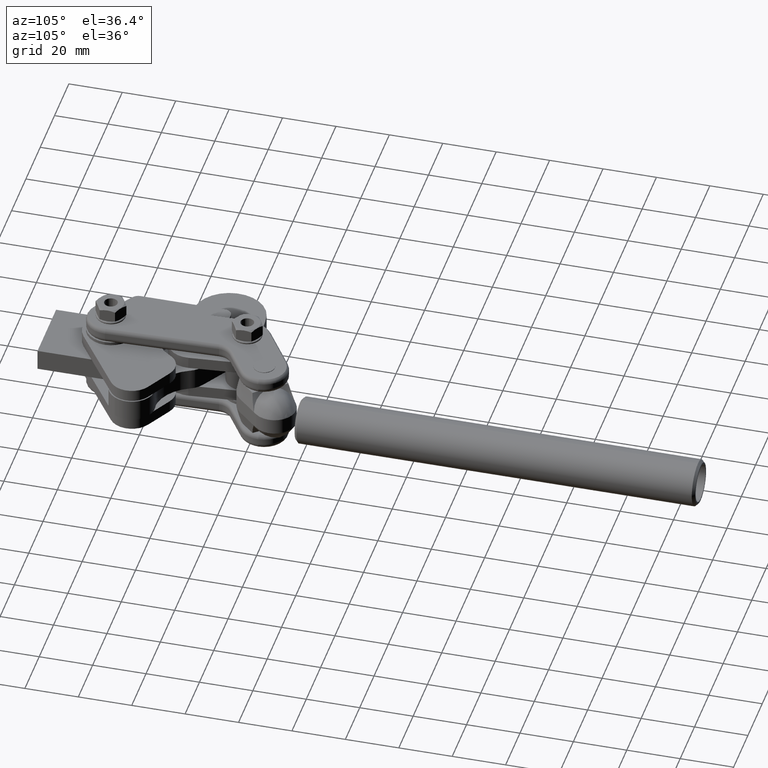
[diagram: clean part render]
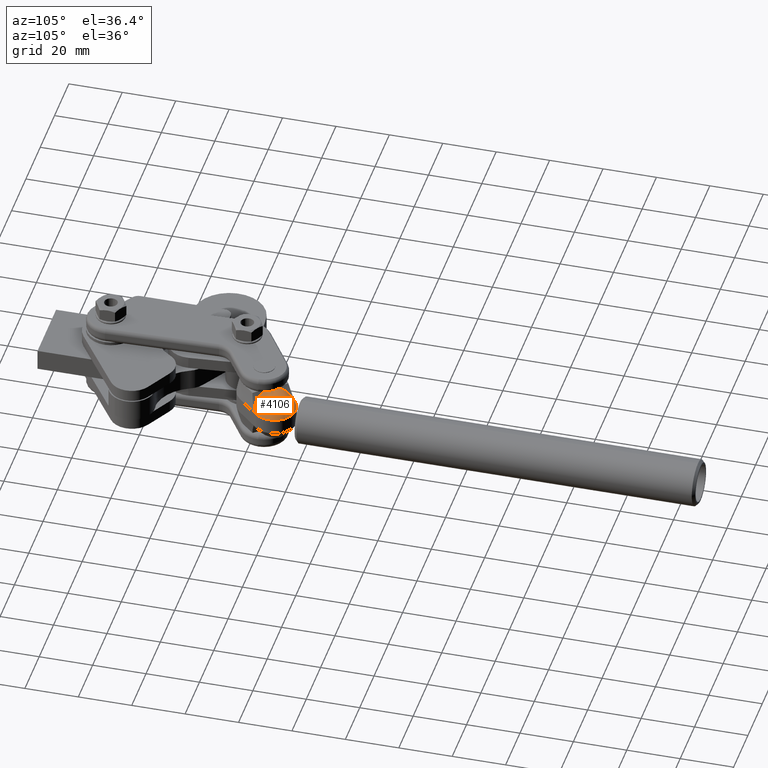
[diagram: same view with one face highlighted and labeled with its STEP entity id]
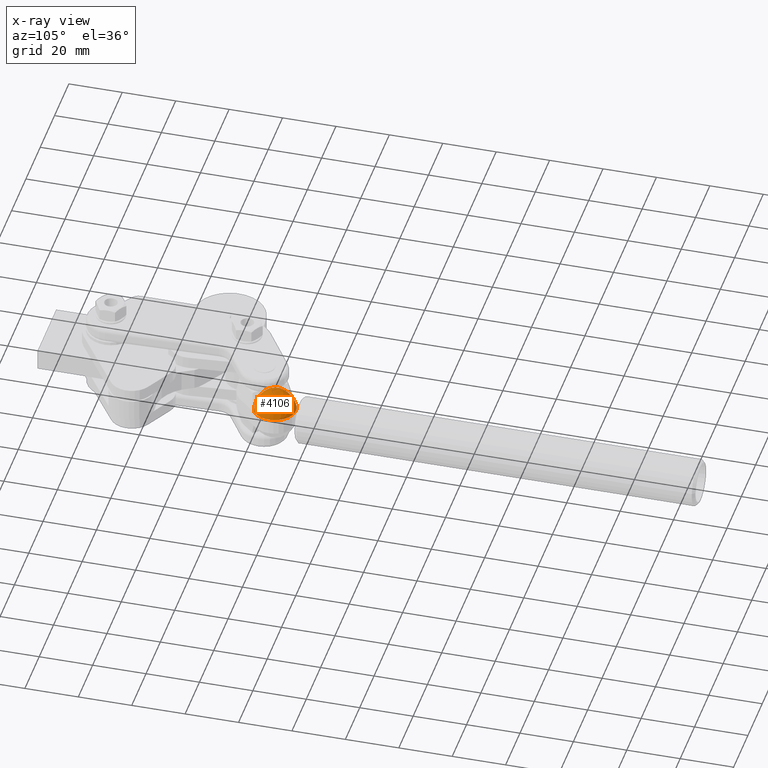
[diagram: x-ray of the same camera — body ghosted, the highlighted face saturated]
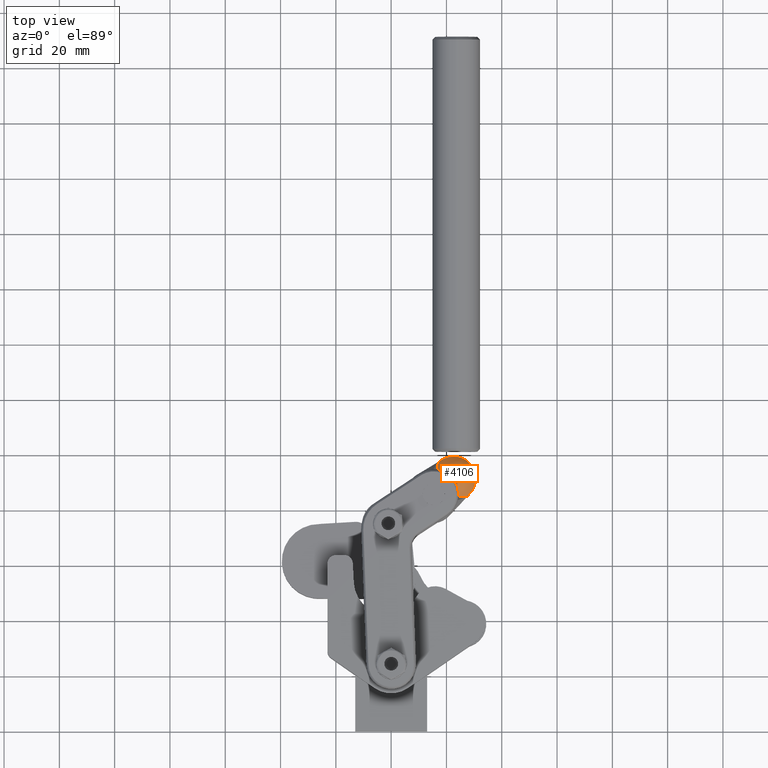
[diagram: same view with one face highlighted and labeled with its STEP entity id]
A machine part, auxiliary view. The second image highlights one B-rep face of the part: STEP entity #4106.
The next image is the same camera in x-ray: the body ghosted, the highlighted face saturated — about 0% of this face is hidden behind the body in this view.
A second angle (top view) of the same face is appended — the face is thin or edge-on in the first view.
In plain terms, the highlighted face is a freeform B-spline surface patch.
Its self-contained STEP definition (entity closure, byte-faithful):
#1 = EDGE_CURVE ( 'NONE', #10053, #4140, #5855, .T. ) ;
#16 = CARTESIAN_POINT ( 'NONE',  ( 28.20521268820891000, 97.16644644876423300, 2.991655464558778300 ) ) ;
#56 = CARTESIAN_POINT ( 'NONE',  ( 28.82232382065510400, 96.40014164269578600, 2.999999999999998200 ) ) ;
#122 = CARTESIAN_POINT ( 'NONE',  ( 21.37688569585138900, 99.27633230243466800, 3.000166234695823800 ) ) ;
#609 = CARTESIAN_POINT ( 'NONE',  ( 11.40401817609150600, 94.07889719735735000, 2.779624734493581600 ) ) ;
#653 = CARTESIAN_POINT ( 'NONE',  ( 11.96919156448442900, 94.41855837122581400, 2.781595761517154900 ) ) ;
#667 = DIRECTION ( 'NONE',  ( 0.6824180438385751800, 0.7309621149167255800, -8.356934724477841600E-017 ) ) ;
#702 = CARTESIAN_POINT ( 'NONE',  ( 13.13068446318447100, 95.11659519705644100, 2.785537815564305100 ) ) ;
#754 = CARTESIAN_POINT ( 'NONE',  ( 14.93228746018345500, 96.20022285493561800, 2.791349938298048000 ) ) ;
#779 = CARTESIAN_POINT ( 'NONE',  ( 18.51649616076339900, 90.50909716582171400, 8.779533946959237100 ) ) ;
#805 = CARTESIAN_POINT ( 'NONE',  ( 16.73366623410056800, 97.28332619117048800, 2.797565894379678400 ) ) ;
#830 = CARTESIAN_POINT ( 'NONE',  ( 16.97839925755656400, 96.92177417139730300, 3.726324554911943500 ) ) ;
#856 = CARTESIAN_POINT ( 'NONE',  ( 17.89560757896437700, 97.98241166028991200, 2.800700281731079300 ) ) ;
#894 = CARTESIAN_POINT ( 'NONE',  ( 19.30330814021231200, 98.82712525930783400, 2.806954033516193100 ) ) ;
#948 = CARTESIAN_POINT ( 'NONE',  ( 21.13625158649277600, 99.50214661625538800, 2.818638069082038300 ) ) ;
#977 = CARTESIAN_POINT ( 'NONE',  ( 26.23936687135529100, 98.50963556223771900, 3.000210450775076400 ) ) ;
#995 = CARTESIAN_POINT ( 'NONE',  ( 24.01159551935856100, 99.48253643869074400, 2.862030150454218300 ) ) ;
#1016 = CARTESIAN_POINT ( 'NONE',  ( 24.93391735589719000, 84.87736800917046800, 5.838298964709409200 ) ) ;
#1020 = CARTESIAN_POINT ( 'NONE',  ( 29.79892638093599500, 87.86225761801152600, 3.000050376854956500 ) ) ;
#1040 = CARTESIAN_POINT ( 'NONE',  ( 26.71360350902793000, 98.46628140325164200, 2.924899181029011300 ) ) ;
#1065 = CARTESIAN_POINT ( 'NONE',  ( 19.95207078626720000, 88.60338799026052900, 8.999999999998166800 ) ) ;
#1070 = CARTESIAN_POINT ( 'NONE',  ( 30.26743939501764300, 93.67479723171118200, 3.000201222297612900 ) ) ;
#1083 = CARTESIAN_POINT ( 'NONE',  ( 28.20404786726497900, 97.17546305892595600, 2.974966393676338400 ) ) ;
#1135 = CARTESIAN_POINT ( 'NONE',  ( 28.82232382065510400, 96.40014164269578600, 2.999999999999998200 ) ) ;
#1212 = CARTESIAN_POINT ( 'NONE',  ( 20.21684121913854800, 99.01774497147047800, 2.999888273103255000 ) ) ;
#1600 = B_SPLINE_CURVE_WITH_KNOTS ( 'NONE', 3,
 ( #3057, #10474, #6255, #13643, #7320, #1016, #8404, #2056, #9467, #3100, #10523, #4160, #11567, #5219, #12638, #6305, #10562, #7367, #1065, #8450 ),
 .UNSPECIFIED., .F., .F.,
 ( 4, 2, 2, 2, 2, 2, 2, 2, 2, 4 ),
 ( 4.091337135425214900E-018, 0.002859219860830585300, 0.003574024826038228100, 0.004288829791245871900, 0.005718439721661155000, 0.006433244686868793000, 0.007148049652076429400, 0.008577659582491691700, 0.01000726951290695200, 0.01143687944332221300 ),
 .UNSPECIFIED. ) ;
#1677 = CARTESIAN_POINT ( 'NONE',  ( 23.35026902321153100, 80.35447226290202100, 2.855838786479969000 ) ) ;
#1721 = CARTESIAN_POINT ( 'NONE',  ( 24.27388990139359800, 81.34367796597823000, 2.858440802352670800 ) ) ;
#1731 = B_SPLINE_SURFACE_WITH_KNOTS ( 'NONE', 3, 3, ( 
 ( #7915, #13215, #9033, #2674, #10087, #3709, #11136, #4778, #12192, #5853, #13261, #6925, #609 ),
 ( #8009, #1677, #9085, #2720, #10135, #3766, #11191, #4823, #12238, #5908, #13311, #6976, #653 ),
 ( #8066, #1721, #9128, #2769, #10183, #3811, #11234, #4868, #12281, #5952, #13360, #7014, #702 ),
 ( #8113, #1768, #9174, #2815, #10222, #3855, #11277, #4919, #12331, #5997, #13396, #7068, #754 ),
 ( #8158, #1816, #9227, #2851, #10270, #3906, #11315, #4960, #12383, #6044, #13444, #7115, #805 ),
 ( #8196, #1858, #9273, #2900, #10314, #3952, #11365, #5008, #12432, #6088, #13493, #7160, #856 ),
 ( #8241, #1895, #9315, #2944, #10361, #3996, #11408, #5059, #12474, #6137, #13533, #7204, #894 ),
 ( #8283, #1942, #9352, #2989, #10404, #4038, #11448, #5105, #12527, #6177, #13571, #7253, #948 ),
 ( #8330, #1986, #9401, #3027, #10451, #4087, #11496, #5149, #12568, #6227, #13615, #7297, #995 ),
 ( #8378, #2031, #9445, #3079, #10499, #4135, #11547, #5194, #12612, #6276, #13667, #7341, #1040 ),
 ( #8425, #2078, #9485, #3116, #10544, #4183, #11588, #5236, #12659, #6325, #16, #7389, #1083 ),
 ( #8473, #2126, #9522, #3161, #10595, #4226, #11633, #5288, #12713, #6368, #56, #7437, #1135 ) ),
 .UNSPECIFIED., .F., .F., .F.,
 ( 4, 1, 1, 1, 2, 1, 1, 1, 4 ),
 ( 4, 3, 1, 1, 1, 3, 4 ),
 ( 0.0000000000000000000, 0.1003186396594180600, 0.2006372793188361300, 0.3009559189782541900, 0.4012745586376722500, 0.5509559189782542400, 0.7006372793188360100, 0.8503186396594180100, 1.000000000000000000 ),
 ( -0.01000000000000000000, 0.0000000000000000000, 0.3333333333333333700, 0.5000000000000048800, 0.6666666666666667400, 1.000000000000000000, 1.010100000000000000 ),
 .UNSPECIFIED. ) ;
#1768 = CARTESIAN_POINT ( 'NONE',  ( 25.70582087705456000, 82.87654516421190500, 2.862277186995414000 ) ) ;
#1816 = CARTESIAN_POINT ( 'NONE',  ( 27.13738251556396700, 84.40933976210932600, 2.866380128303415400 ) ) ;
#1832 = CARTESIAN_POINT ( 'NONE',  ( 17.92246524172528800, 91.48203323237307000, 8.403796443902907100 ) ) ;
#1858 = CARTESIAN_POINT ( 'NONE',  ( 28.06174206804914200, 85.39869066585808400, 2.868449030845597200 ) ) ;
#1895 = CARTESIAN_POINT ( 'NONE',  ( 29.18047678575045400, 86.59793412605172600, 2.872576919812668300 ) ) ;
#1942 = CARTESIAN_POINT ( 'NONE',  ( 30.22370046471557700, 88.24855999108562800, 2.880289154509598300 ) ) ;
#1986 = CARTESIAN_POINT ( 'NONE',  ( 30.81081383314369800, 91.06146035804198400, 2.908930792379026200 ) ) ;
#2014 = CARTESIAN_POINT ( 'NONE',  ( 25.14243040992724700, 98.95755979436633300, 2.999878074554629400 ) ) ;
#2031 = CARTESIAN_POINT ( 'NONE',  ( 30.39033685703529400, 93.91163743439196300, 2.950428502329377700 ) ) ;
#2056 = CARTESIAN_POINT ( 'NONE',  ( 24.26644967304894600, 85.09672089442179300, 6.499666582459826500 ) ) ;
#2060 = CARTESIAN_POINT ( 'NONE',  ( 30.17702617230747800, 88.74529921046922700, 3.000181391786845200 ) ) ;
#2078 = CARTESIAN_POINT ( 'NONE',  ( 29.44734329930710000, 95.63535608389248900, 2.983476167443126900 ) ) ;
#2107 = CARTESIAN_POINT ( 'NONE',  ( 29.85065579826166600, 94.78909118855993700, 2.999852583906435400 ) ) ;
#2126 = CARTESIAN_POINT ( 'NONE',  ( 28.82232382065510400, 96.40014164269578600, 2.999999999999998200 ) ) ;
#2197 = CARTESIAN_POINT ( 'NONE',  ( 28.45140838779680000, 85.90801869431732000, 2.999999999999998200 ) ) ;
#2203 = CARTESIAN_POINT ( 'NONE',  ( 17.26201076002576000, 97.49081262841701800, 2.999999999999999600 ) ) ;
#2241 = CARTESIAN_POINT ( 'NONE',  ( 18.89380220077244800, 98.47129184362793800, 2.999999999583411000 ) ) ;
#2674 = CARTESIAN_POINT ( 'NONE',  ( 22.86206775600922500, 79.92107815824925900, 2.999999999999998700 ) ) ;
#2720 = CARTESIAN_POINT ( 'NONE',  ( 23.31029669610172000, 80.40119203708800900, 2.999999999999999100 ) ) ;
#2769 = CARTESIAN_POINT ( 'NONE',  ( 24.23155099067679400, 81.38798011166889500, 2.999999999999996400 ) ) ;
#2815 = CARTESIAN_POINT ( 'NONE',  ( 25.65673807190301000, 82.91454842628327500, 2.999999999999999100 ) ) ;
#2851 = CARTESIAN_POINT ( 'NONE',  ( 27.08192515312923000, 84.44111674089768400, 2.999999999999998700 ) ) ;
#2874 = CARTESIAN_POINT ( 'NONE',  ( 17.61102022514365800, 92.06481056372024300, 8.110252212997432200 ) ) ;
#2900 = CARTESIAN_POINT ( 'NONE',  ( 28.00317944770430900, 85.42790481547855600, 2.999999999999999100 ) ) ;
#2944 = CARTESIAN_POINT ( 'NONE',  ( 29.12019254550204300, 86.62437707134560600, 2.999999999999997800 ) ) ;
#2989 = CARTESIAN_POINT ( 'NONE',  ( 30.16519175888748800, 88.27243880928023100, 2.999999999999995600 ) ) ;
#3027 = CARTESIAN_POINT ( 'NONE',  ( 30.76562702070204800, 91.07882463817478000, 3.000000000000006700 ) ) ;
#3043 = VECTOR ( 'NONE', #3745, 1000.000000000000000 ) ;
#3057 = CARTESIAN_POINT ( 'NONE',  ( 27.47901625048580200, 84.86645506680957900, 2.999999999999998200 ) ) ;
#3062 = CARTESIAN_POINT ( 'NONE',  ( 24.45559602390956000, 99.15372252055648500, 3.000017330977174700 ) ) ;
#3079 = CARTESIAN_POINT ( 'NONE',  ( 30.36486458700199300, 93.92060460783899600, 2.999999999999992000 ) ) ;
#3100 = CARTESIAN_POINT ( 'NONE',  ( 23.42791143844331400, 85.52097267316939600, 7.241292367118057300 ) ) ;
#3104 = CARTESIAN_POINT ( 'NONE',  ( 30.47064438887455800, 89.89503791962246700, 2.999887866087444200 ) ) ;
#3116 = CARTESIAN_POINT ( 'NONE',  ( 29.43885254262933100, 95.63834514170818600, 2.999999999999998200 ) ) ;
#3150 = CARTESIAN_POINT ( 'NONE',  ( 29.38429096353284800, 95.61960242889952600, 2.999834335074615100 ) ) ;
#3161 = CARTESIAN_POINT ( 'NONE',  ( 28.82232382065510400, 96.40014164269578600, 2.999999999999998200 ) ) ;
#3210 = VECTOR ( 'NONE', #667, 1000.000000000000100 ) ;
#3277 = VERTEX_POINT ( 'NONE', #5131 ) ;
#3280 = EDGE_CURVE ( 'NONE', #4507, #10053, #4810, .T. ) ;
#3709 = CARTESIAN_POINT ( 'NONE',  ( 20.41402260009074300, 82.94593680241196400, 8.212185178803183700 ) ) ;
#3745 = DIRECTION ( 'NONE',  ( -0.8571673007021116700, -0.5150380749100552700, 1.049692522728615100E-016 ) ) ;
#3766 = CARTESIAN_POINT ( 'NONE',  ( 20.83705191932738600, 83.36907415202402700, 8.201343446000251400 ) ) ;
#3795 = CARTESIAN_POINT ( 'NONE',  ( 18.48340686918254500, 98.22470145064282600, 2.999999999999999100 ) ) ;
#3811 = CARTESIAN_POINT ( 'NONE',  ( 21.65098987303822400, 84.19368153174085000, 8.179659980394392300 ) ) ;
#3855 = CARTESIAN_POINT ( 'NONE',  ( 22.81531680756085100, 85.39090273356671900, 8.147690108371541800 ) ) ;
#3906 = CARTESIAN_POINT ( 'NONE',  ( 23.98364378133514700, 86.58758941087114600, 8.113498930804867700 ) ) ;
#3926 = CARTESIAN_POINT ( 'NONE',  ( 17.25790566462965400, 92.82669986295060500, 7.653385413097586500 ) ) ;
#3952 = CARTESIAN_POINT ( 'NONE',  ( 24.78958165654264400, 87.41326583963082400, 8.096258076286691400 ) ) ;
#3996 = CARTESIAN_POINT ( 'NONE',  ( 25.85708691805165700, 88.46597311704593400, 8.061859001561083800 ) ) ;
#4038 = CARTESIAN_POINT ( 'NONE',  ( 27.03948037617182000, 89.91116262967963700, 7.823966926785465700 ) ) ;
#4087 = CARTESIAN_POINT ( 'NONE',  ( 28.36845648987729300, 92.27550700756275100, 6.741578457639021400 ) ) ;
#4106 = ADVANCED_FACE ( 'NONE', ( #6277 ), #1731, .T. ) ;
#4119 = CARTESIAN_POINT ( 'NONE',  ( 23.51360502022045300, 99.32982578246199500, 3.000081100900274600 ) ) ;
#4135 = CARTESIAN_POINT ( 'NONE',  ( 29.03267901162989500, 94.54803867398010200, 5.051377564143240100 ) ) ;
#4140 = VERTEX_POINT ( 'NONE', #2203 ) ;
#4160 = CARTESIAN_POINT ( 'NONE',  ( 22.91820890188294500, 85.84127504175157200, 7.644663462025588000 ) ) ;
#4165 = CARTESIAN_POINT ( 'NONE',  ( 30.57078420082694200, 90.60389165463855900, 3.000013067664120100 ) ) ;
#4183 = CARTESIAN_POINT ( 'NONE',  ( 28.97567834595690100, 95.83806060596758400, 3.689429836542097000 ) ) ;
#4209 = CARTESIAN_POINT ( 'NONE',  ( 29.11432995800580100, 96.01777291328063800, 2.999937666179784300 ) ) ;
#4226 = CARTESIAN_POINT ( 'NONE',  ( 28.82232382065510400, 96.40014164269578600, 2.999999999999999600 ) ) ;
#4246 = CARTESIAN_POINT ( 'NONE',  ( 30.44392295912098200, 92.97625247677220300, 2.999970535773570600 ) ) ;
#4507 = VERTEX_POINT ( 'NONE', #10910 ) ;
#4778 = CARTESIAN_POINT ( 'NONE',  ( 13.91082872049905300, 90.98142674171764100, 8.212185178803187200 ) ) ;
#4810 = B_SPLINE_CURVE_WITH_KNOTS ( 'NONE', 3,
 ( #13599, #6209, #7280, #977, #8357, #2014, #9427, #3062, #10480, #4119, #11527, #5364, #12782, #6453, #122, #7510, #1212, #8591, #2241, #9642 ),
 .UNSPECIFIED., .F., .F.,
 ( 4, 2, 2, 2, 2, 2, 2, 2, 2, 4 ),
 ( -1.116518309797334000E-007, 0.002873236340466861700, 0.004309910336615777900, 0.005028247334690236000, 0.005746584332764693300, 0.007183258328913616500, 0.007901595326988071100, 0.008619932325062529300, 0.01005660632121144200, 0.01149328031736035500 ),
 .UNSPECIFIED. ) ;
#4823 = CARTESIAN_POINT ( 'NONE',  ( 14.41285917664789200, 91.30694854232326900, 8.201343446000253200 ) ) ;
#4868 = CARTESIAN_POINT ( 'NONE',  ( 15.38903254253252600, 91.93109426482075700, 8.179659980394395900 ) ) ;
#4870 = CARTESIAN_POINT ( 'NONE',  ( 18.48340686918255200, 98.22470145064282600, 2.999999999999999100 ) ) ;
#4919 = CARTESIAN_POINT ( 'NONE',  ( 16.80267937761600900, 92.82025029286906200, 8.147690108371540100 ) ) ;
#4960 = CARTESIAN_POINT ( 'NONE',  ( 18.21663733332945900, 93.71342990569125700, 8.113498930804869500 ) ) ;
#4978 = CARTESIAN_POINT ( 'NONE',  ( 16.89313299429952100, 93.94329036435551900, 6.809840443008569700 ) ) ;
#5008 = CARTESIAN_POINT ( 'NONE',  ( 19.19218845795418500, 94.32952845864099300, 8.096258076286691400 ) ) ;
#5059 = CARTESIAN_POINT ( 'NONE',  ( 20.44431189884271700, 95.15411743749626800, 8.061859001561087400 ) ) ;
#5105 = CARTESIAN_POINT ( 'NONE',  ( 22.10424509384305100, 96.00924830781245600, 7.823966926785463900 ) ) ;
#5131 = CARTESIAN_POINT ( 'NONE',  ( 19.64987060118989600, 88.97679321111030500, 8.999999999999998200 ) ) ;
#5149 = CARTESIAN_POINT ( 'NONE',  ( 24.69369611635624700, 96.81612205879992000, 6.741578457639020500 ) ) ;
#5194 = CARTESIAN_POINT ( 'NONE',  ( 27.05476847716616000, 96.99198859993985900, 5.051377564143239200 ) ) ;
#5219 = CARTESIAN_POINT ( 'NONE',  ( 22.24066677235788000, 86.33461043498989800, 8.120625009564488300 ) ) ;
#5222 = CARTESIAN_POINT ( 'NONE',  ( 30.61564532236860000, 91.56211458644830300, 3.000088669804205700 ) ) ;
#5236 = CARTESIAN_POINT ( 'NONE',  ( 28.30456306822032200, 96.66730546045209800, 3.689429836542097000 ) ) ;
#5270 = CARTESIAN_POINT ( 'NONE',  ( 28.89697398849867900, 96.30790224713396700, 2.999999994786319800 ) ) ;
#5288 = CARTESIAN_POINT ( 'NONE',  ( 28.82232382065510400, 96.40014164269578600, 2.999999999999999600 ) ) ;
#5364 = CARTESIAN_POINT ( 'NONE',  ( 22.32933667908664100, 99.36617379634073200, 2.999919705343645900 ) ) ;
#5705 = EDGE_CURVE ( 'NONE', #6370, #7964, #11664, .T. ) ;
#5853 = CARTESIAN_POINT ( 'NONE',  ( 11.46278356458056700, 94.00628538588034600, 3.000000000000000400 ) ) ;
#5855 = LINE ( 'NONE', #3795, #3043 ) ;
#5908 = CARTESIAN_POINT ( 'NONE',  ( 12.02579211065373600, 94.34457504939166500, 3.000000000000000900 ) ) ;
#5952 = CARTESIAN_POINT ( 'NONE',  ( 13.18295532471427300, 95.03986885450802900, 3.000000000000004000 ) ) ;
#5997 = CARTESIAN_POINT ( 'NONE',  ( 14.97309521688155000, 96.11549341826156500, 2.999999999999995600 ) ) ;
#6044 = CARTESIAN_POINT ( 'NONE',  ( 16.76323510904884300, 97.19111798201517200, 3.000000000000002700 ) ) ;
#6064 = CARTESIAN_POINT ( 'NONE',  ( 16.73402183632142500, 94.99590534876314500, 5.848053630125485300 ) ) ;
#6088 = CARTESIAN_POINT ( 'NONE',  ( 17.92039832310938200, 97.88641178713149300, 2.999999999999999600 ) ) ;
#6137 = CARTESIAN_POINT ( 'NONE',  ( 19.32344900521395900, 98.72944968850788400, 2.999999999999998700 ) ) ;
#6177 = CARTESIAN_POINT ( 'NONE',  ( 21.15315393118928700, 99.40791172273085900, 2.999999999999992900 ) ) ;
#6209 = CARTESIAN_POINT ( 'NONE',  ( 28.21978530900317100, 97.14465153092429300, 2.999999957804995200 ) ) ;
#6213 = ORIENTED_EDGE ( 'NONE', *, *, #5705, .T. ) ;
#6227 = CARTESIAN_POINT ( 'NONE',  ( 24.02305273483414900, 99.41009829266933200, 3.000000000000005800 ) ) ;
#6255 = CARTESIAN_POINT ( 'NONE',  ( 26.23855455017359300, 84.66013652772397800, 4.448502825253773300 ) ) ;
#6261 = CARTESIAN_POINT ( 'NONE',  ( 29.07203218776371000, 86.63596344752203000, 2.999855382662377100 ) ) ;
#6276 = CARTESIAN_POINT ( 'NONE',  ( 26.71884520327562400, 98.42570665752391800, 2.999999999999992500 ) ) ;
#6277 = FACE_OUTER_BOUND ( 'NONE', #9226, .T. ) ;
#6305 = CARTESIAN_POINT ( 'NONE',  ( 21.24286147917647900, 87.21936442641911900, 8.650474606833631300 ) ) ;
#6308 = CARTESIAN_POINT ( 'NONE',  ( 30.48830269041104700, 92.74202246057076600, 2.999907414358070800 ) ) ;
#6325 = CARTESIAN_POINT ( 'NONE',  ( 28.20579509868087300, 97.16193814368337200, 2.999999999999998200 ) ) ;
#6368 = CARTESIAN_POINT ( 'NONE',  ( 28.82232382065510400, 96.40014164269578600, 2.999999999999998200 ) ) ;
#6370 = VERTEX_POINT ( 'NONE', #7012 ) ;
#6453 = CARTESIAN_POINT ( 'NONE',  ( 21.61573725287670900, 99.30972138761328000, 3.000101662676117400 ) ) ;
#6925 = CARTESIAN_POINT ( 'NONE',  ( 11.42360663892119300, 94.05469326019834900, 2.853083156329054400 ) ) ;
#6976 = CARTESIAN_POINT ( 'NONE',  ( 11.98805841320752900, 94.39389726394776400, 2.854397174344770200 ) ) ;
#7012 = CARTESIAN_POINT ( 'NONE',  ( 27.47901625048580200, 84.86645506680957900, 2.999999999999998200 ) ) ;
#7014 = CARTESIAN_POINT ( 'NONE',  ( 13.14810808369440500, 95.09101974954030800, 2.857025210376204600 ) ) ;
#7068 = CARTESIAN_POINT ( 'NONE',  ( 14.94589004574948800, 96.17197970937760900, 2.860899958865363900 ) ) ;
#7086 = CARTESIAN_POINT ( 'NONE',  ( 19.05612321015629000, 89.73735708797265400, 8.953586419710736900 ) ) ;
#7115 = CARTESIAN_POINT ( 'NONE',  ( 16.74352252574999200, 97.25259012145204500, 2.865043929586453200 ) ) ;
#7140 = CARTESIAN_POINT ( 'NONE',  ( 16.80094464267071800, 96.32057164513551600, 4.448962514880575400 ) ) ;
#7160 = CARTESIAN_POINT ( 'NONE',  ( 17.90387116034604300, 97.95041170257043500, 2.867133521154052700 ) ) ;
#7169 = EDGE_CURVE ( 'NONE', #7964, #4507, #11121, .T. ) ;
#7204 = CARTESIAN_POINT ( 'NONE',  ( 19.31002176187952900, 98.79456673570786100, 2.871302689010795100 ) ) ;
#7253 = CARTESIAN_POINT ( 'NONE',  ( 21.14188570139161500, 99.47073498508055400, 2.879092046054689800 ) ) ;
#7280 = CARTESIAN_POINT ( 'NONE',  ( 27.48032495887695200, 97.78131880882018800, 3.000139727912581200 ) ) ;
#7297 = CARTESIAN_POINT ( 'NONE',  ( 24.01541459118375600, 99.45839039001694500, 2.908020100302814100 ) ) ;
#7320 = CARTESIAN_POINT ( 'NONE',  ( 25.26506263935796100, 84.79879299932538600, 5.495387032292327900 ) ) ;
#7324 = CARTESIAN_POINT ( 'NONE',  ( 29.57734256018581200, 87.43985097149685300, 2.999923797603375200 ) ) ;
#7341 = CARTESIAN_POINT ( 'NONE',  ( 26.71535074044383200, 98.45275648800907200, 2.949932787352671500 ) ) ;
#7367 = CARTESIAN_POINT ( 'NONE',  ( 20.26419729074530500, 88.24393819721980500, 8.954762274973811400 ) ) ;
#7371 = CARTESIAN_POINT ( 'NONE',  ( 30.33354810338168100, 93.44271049046713500, 3.000117884381394700 ) ) ;
#7389 = CARTESIAN_POINT ( 'NONE',  ( 28.20463027773694600, 97.17095475384508100, 2.983310929117558400 ) ) ;
#7437 = CARTESIAN_POINT ( 'NONE',  ( 28.82232382065510400, 96.40014164269578600, 2.999999999999998200 ) ) ;
#7510 = CARTESIAN_POINT ( 'NONE',  ( 20.67333799308549700, 99.14561754134351200, 3.000117247292436200 ) ) ;
#7915 = CARTESIAN_POINT ( 'NONE',  ( 22.92025130896869500, 79.84918527559877100, 2.781806667815426100 ) ) ;
#7964 = VERTEX_POINT ( 'NONE', #2197 ) ;
#8009 = CARTESIAN_POINT ( 'NONE',  ( 23.37025518676643500, 80.33111237580901300, 2.783758179719954200 ) ) ;
#8027 = CARTESIAN_POINT ( 'NONE',  ( 22.86206775600922500, 79.92107815824925900, 2.999999999999998700 ) ) ;
#8066 = CARTESIAN_POINT ( 'NONE',  ( 24.29505935675200200, 81.32152689313291200, 2.787661203529007800 ) ) ;
#8113 = CARTESIAN_POINT ( 'NONE',  ( 25.73036227963033100, 82.85754353317621200, 2.793415780493121200 ) ) ;
#8158 = CARTESIAN_POINT ( 'NONE',  ( 27.16511119678133600, 84.39345127271512600, 2.799570192455123500 ) ) ;
#8173 = CARTESIAN_POINT ( 'NONE',  ( 18.26606369116003800, 90.89636293987482000, 8.652354666832518900 ) ) ;
#8196 = CARTESIAN_POINT ( 'NONE',  ( 28.09102337822155700, 85.38408359104785500, 2.802673546268396300 ) ) ;
#8215 = CARTESIAN_POINT ( 'NONE',  ( 17.26201076002576000, 97.49081262841701800, 2.999999999999999600 ) ) ;
#8241 = CARTESIAN_POINT ( 'NONE',  ( 29.21061890587466100, 86.58471265340477900, 2.808865379719003300 ) ) ;
#8283 = CARTESIAN_POINT ( 'NONE',  ( 30.25295481762962200, 88.23662058198833300, 2.820433731764399300 ) ) ;
#8330 = CARTESIAN_POINT ( 'NONE',  ( 30.83340723936452900, 91.05277821797558600, 2.863396188568536200 ) ) ;
#8355 = CARTESIAN_POINT ( 'NONE',  ( 28.45140838779680000, 85.90801869431732000, 2.999999999999998200 ) ) ;
#8357 = CARTESIAN_POINT ( 'NONE',  ( 25.80980708239791000, 98.71213486885369500, 2.999920868747120400 ) ) ;
#8378 = CARTESIAN_POINT ( 'NONE',  ( 30.40307299205194300, 93.90715384766842500, 2.925642753494071000 ) ) ;
#8404 = CARTESIAN_POINT ( 'NONE',  ( 24.76652851915990900, 84.92581766917015800, 6.007673215908958800 ) ) ;
#8407 = CARTESIAN_POINT ( 'NONE',  ( 29.90119621258088100, 88.08037430176015900, 3.000134553891050900 ) ) ;
#8425 = CARTESIAN_POINT ( 'NONE',  ( 29.45158867764598300, 95.63386155498466200, 2.975214251164691100 ) ) ;
#8450 = CARTESIAN_POINT ( 'NONE',  ( 19.64987060118989600, 88.97679321111030500, 8.999999999999998200 ) ) ;
#8456 = CARTESIAN_POINT ( 'NONE',  ( 30.04062737747177200, 94.35403256053625400, 3.000156078407963700 ) ) ;
#8473 = CARTESIAN_POINT ( 'NONE',  ( 28.82232382065510400, 96.40014164269578600, 2.999999999999998200 ) ) ;
#8591 = CARTESIAN_POINT ( 'NONE',  ( 19.32857286971150800, 98.68166139596486600, 2.999854740316415300 ) ) ;
#8874 = ORIENTED_EDGE ( 'NONE', *, *, #11263, .F. ) ;
#9033 = CARTESIAN_POINT ( 'NONE',  ( 22.88146227366237900, 79.89711386403242000, 2.927268889271808000 ) ) ;
#9085 = CARTESIAN_POINT ( 'NONE',  ( 23.33028285965662400, 80.37783214999501500, 2.927919393239984300 ) ) ;
#9128 = CARTESIAN_POINT ( 'NONE',  ( 24.25272044603520200, 81.36582903882356300, 2.929220401176333900 ) ) ;
#9174 = CARTESIAN_POINT ( 'NONE',  ( 25.68127947447878500, 82.89554679524759700, 2.931138593497706300 ) ) ;
#9195 = CARTESIAN_POINT ( 'NONE',  ( 19.64987060118989600, 88.97679321111030500, 8.999999999999998200 ) ) ;
#9226 = EDGE_LOOP ( 'NONE', ( #8874, #6213, #10343, #10579, #13545, #12125 ) ) ;
#9227 = CARTESIAN_POINT ( 'NONE',  ( 27.10965383434659500, 84.42522825150349800, 2.933190064151706800 ) ) ;
#9246 = CARTESIAN_POINT ( 'NONE',  ( 17.81337951334186800, 91.67814009917231000, 8.311078229708496000 ) ) ;
#9273 = CARTESIAN_POINT ( 'NONE',  ( 28.03246075787672400, 85.41329774066832700, 2.934224515422798200 ) ) ;
#9315 = CARTESIAN_POINT ( 'NONE',  ( 29.15033466562625000, 86.61115559869867300, 2.936288459906333200 ) ) ;
#9352 = CARTESIAN_POINT ( 'NONE',  ( 30.19444611180153300, 88.26049940018293700, 2.940144577254796900 ) ) ;
#9401 = CARTESIAN_POINT ( 'NONE',  ( 30.78822042692286900, 91.07014249810838200, 2.954465396189516200 ) ) ;
#9427 = CARTESIAN_POINT ( 'NONE',  ( 24.91610851954076700, 99.02958792863860500, 2.999911567137143900 ) ) ;
#9445 = CARTESIAN_POINT ( 'NONE',  ( 30.37760072201864500, 93.91612102111547200, 2.975214251164684900 ) ) ;
#9467 = CARTESIAN_POINT ( 'NONE',  ( 23.93287695543966700, 85.24527725200619000, 6.809392792436297800 ) ) ;
#9470 = CARTESIAN_POINT ( 'NONE',  ( 30.31889667544717100, 89.19908801207184000, 2.999935693399022900 ) ) ;
#9485 = CARTESIAN_POINT ( 'NONE',  ( 29.44309792096821700, 95.63685061280033000, 2.991738083721562400 ) ) ;
#9508 = CARTESIAN_POINT ( 'NONE',  ( 29.50812133609617800, 95.41529224173783100, 2.999802186011371900 ) ) ;
#9522 = CARTESIAN_POINT ( 'NONE',  ( 28.82232382065510400, 96.40014164269578600, 2.999999999999998200 ) ) ;
#9586 = EDGE_CURVE ( 'NONE', #3277, #4140, #13544, .T. ) ;
#9642 = CARTESIAN_POINT ( 'NONE',  ( 18.48340686918255200, 98.22470145064282600, 2.999999999999999100 ) ) ;
#10053 = VERTEX_POINT ( 'NONE', #4870 ) ;
#10087 = CARTESIAN_POINT ( 'NONE',  ( 22.21558383423736400, 80.71988796547690000, 5.424370357606363800 ) ) ;
#10135 = CARTESIAN_POINT ( 'NONE',  ( 22.64409124427154700, 81.17985494018786600, 5.402686892000498500 ) ) ;
#10183 = CARTESIAN_POINT ( 'NONE',  ( 23.52590247872999300, 82.12634920651318300, 5.359319960788764300 ) ) ;
#10222 = CARTESIAN_POINT ( 'NONE',  ( 24.83869131937720800, 83.54793612747283800, 5.295380216743083700 ) ) ;
#10270 = CARTESIAN_POINT ( 'NONE',  ( 26.15763577921690300, 84.97073305403729600, 5.226997861609720400 ) ) ;
#10290 = CARTESIAN_POINT ( 'NONE',  ( 17.51715529728694400, 92.25635849058532800, 8.001748233464166300 ) ) ;
#10314 = CARTESIAN_POINT ( 'NONE',  ( 27.02713577529039700, 85.91480730915301900, 5.192516152573370300 ) ) ;
#10343 = ORIENTED_EDGE ( 'NONE', *, *, #7169, .T. ) ;
#10361 = CARTESIAN_POINT ( 'NONE',  ( 28.11545520802850000, 87.06509282624371300, 5.123718003122158700 ) ) ;
#10404 = CARTESIAN_POINT ( 'NONE',  ( 29.19004666175263600, 88.67041911252356100, 4.995180758173293400 ) ) ;
#10451 = CARTESIAN_POINT ( 'NONE',  ( 30.01251348000777600, 91.36822930705461900, 4.517820127016348100 ) ) ;
#10474 = CARTESIAN_POINT ( 'NONE',  ( 26.86230591671408900, 84.70743368413217000, 3.727562536165413700 ) ) ;
#10480 = CARTESIAN_POINT ( 'NONE',  ( 24.22020504919570900, 99.20599355574633200, 3.000089505556833700 ) ) ;
#10499 = CARTESIAN_POINT ( 'NONE',  ( 29.94032675311362400, 94.07005749862305800, 3.826191627843561300 ) ) ;
#10523 = CARTESIAN_POINT ( 'NONE',  ( 23.25881392457228400, 85.62170013224194100, 7.379791968967664300 ) ) ;
#10527 = CARTESIAN_POINT ( 'NONE',  ( 30.51098865513083100, 90.12958116605062700, 2.999914631683005900 ) ) ;
#10544 = CARTESIAN_POINT ( 'NONE',  ( 29.29733993133321200, 95.68816277196953000, 3.275397209281188300 ) ) ;
#10562 = CARTESIAN_POINT ( 'NONE',  ( 20.90868030715095900, 87.55244206942030900, 8.780871291079067800 ) ) ;
#10578 = CARTESIAN_POINT ( 'NONE',  ( 29.18360745580346800, 95.91922182056610800, 2.999909265925894400 ) ) ;
#10579 = ORIENTED_EDGE ( 'NONE', *, *, #3280, .T. ) ;
#10595 = CARTESIAN_POINT ( 'NONE',  ( 28.82232382065510400, 96.40014164269578600, 2.999999999999998200 ) ) ;
#10910 = CARTESIAN_POINT ( 'NONE',  ( 28.82232382065510400, 96.40014164269578600, 2.999999999999998200 ) ) ;
#11121 = B_SPLINE_CURVE_WITH_KNOTS ( 'NONE', 3,
 ( #8355, #11525, #6261, #13647, #7324, #1020, #8407, #2060, #9470, #3104, #10527, #4165, #11572, #5222, #12644, #6308, #4246, #7371, #1070, #8456, #2107, #9508, #3150, #10578, #4209, #11613, #5270, #12692 ),
 .UNSPECIFIED., .F., .F.,
 ( 4, 2, 2, 2, 2, 2, 2, 2, 2, 2, 2, 2, 2, 4 ),
 ( 0.0000000000000000000, 0.001423948217417664100, 0.002135922326126513500, 0.002847896434835363000, 0.004271844652253024500, 0.004983818760961853500, 0.005695792869670683400, 0.007119741087088300700, 0.007831715195797131500, 0.008543689304505960500, 0.009967637521923618600, 0.01067961163063245100, 0.01103559868498688700, 0.01139158573934132300 ),
 .UNSPECIFIED. ) ;
#11136 = CARTESIAN_POINT ( 'NONE',  ( 17.16242566029489700, 86.96368177206480300, 9.262604940398935200 ) ) ;
#11191 = CARTESIAN_POINT ( 'NONE',  ( 17.61799823296440000, 87.33238072989712500, 9.266218851333244200 ) ) ;
#11234 = CARTESIAN_POINT ( 'NONE',  ( 18.46048900688906300, 88.01421604871188700, 9.273446673201878100 ) ) ;
#11263 = EDGE_CURVE ( 'NONE', #6370, #3277, #1600, .T. ) ;
#11277 = CARTESIAN_POINT ( 'NONE',  ( 19.65627732596506000, 88.98197823081153500, 9.284103297209471300 ) ) ;
#11291 = CARTESIAN_POINT ( 'NONE',  ( 19.34872644677583200, 89.34889357715685800, 9.000000000001827900 ) ) ;
#11315 = CARTESIAN_POINT ( 'NONE',  ( 20.85134711839412700, 89.94915890286911500, 9.295500356398379800 ) ) ;
#11335 = CARTESIAN_POINT ( 'NONE',  ( 17.11460222284058800, 93.20173738842950700, 7.390350751243664400 ) ) ;
#11365 = CARTESIAN_POINT ( 'NONE',  ( 21.69527494561266000, 90.63215724176801300, 9.301247307904434400 ) ) ;
#11408 = CARTESIAN_POINT ( 'NONE',  ( 22.82820132981739300, 91.54904469772130000, 9.312713666146303000 ) ) ;
#11448 = CARTESIAN_POINT ( 'NONE',  ( 24.24158968383745000, 92.69291253437788200, 9.044764119802469100 ) ) ;
#11496 = CARTESIAN_POINT ( 'NONE',  ( 26.26910303648192300, 94.33379722533020100, 7.718143969048678200 ) ) ;
#11525 = CARTESIAN_POINT ( 'NONE',  ( 28.77998130850519600, 86.25996477662545200, 2.999999999581039600 ) ) ;
#11527 = CARTESIAN_POINT ( 'NONE',  ( 23.04087283312524500, 99.36948212579596900, 2.999871981350330100 ) ) ;
#11547 = CARTESIAN_POINT ( 'NONE',  ( 27.89507302593256100, 95.64970928093148900, 5.592770979061829600 ) ) ;
#11567 = CARTESIAN_POINT ( 'NONE',  ( 22.74741370809384500, 85.95974834854551700, 7.770396164485461600 ) ) ;
#11572 = CARTESIAN_POINT ( 'NONE',  ( 30.59020726997853100, 90.84473710524127900, 3.000085822857521100 ) ) ;
#11588 = CARTESIAN_POINT ( 'NONE',  ( 28.57979753649819100, 96.20386295170338500, 3.873652518288970700 ) ) ;
#11613 = CARTESIAN_POINT ( 'NONE',  ( 28.97159210522639200, 96.21138629590646500, 2.999983050743421300 ) ) ;
#11633 = CARTESIAN_POINT ( 'NONE',  ( 28.82232382065510400, 96.40014164269578600, 3.000000000000000900 ) ) ;
#11664 = LINE ( 'NONE', #8027, #3210 ) ;
#12125 = ORIENTED_EDGE ( 'NONE', *, *, #9586, .F. ) ;
#12192 = CARTESIAN_POINT ( 'NONE',  ( 12.10926748635243100, 93.20747557865269100, 5.424370357606366400 ) ) ;
#12238 = CARTESIAN_POINT ( 'NONE',  ( 12.64846038534360400, 93.53067711942324500, 5.402686892000502900 ) ) ;
#12281 = CARTESIAN_POINT ( 'NONE',  ( 13.75799230524015100, 94.19579467905802500, 5.359319960788774000 ) ) ;
#12331 = CARTESIAN_POINT ( 'NONE',  ( 15.42202543358229300, 95.18337640314530300, 5.295380216743088100 ) ) ;
#12383 = CARTESIAN_POINT ( 'NONE',  ( 17.08852526249521400, 96.17672624213274400, 5.226997861609732800 ) ) ;
#12401 = CARTESIAN_POINT ( 'NONE',  ( 16.81765018141611600, 94.30066917604895600, 6.499701998831840300 ) ) ;
#12432 = CARTESIAN_POINT ( 'NONE',  ( 18.19312378125022900, 96.83030757196731000, 5.192516152573383600 ) ) ;
#12474 = CARTESIAN_POINT ( 'NONE',  ( 19.54502067739933600, 97.65491095583520600, 5.123718003122177400 ) ) ;
#12527 = CARTESIAN_POINT ( 'NONE',  ( 21.33909831728951500, 98.37122422521117900, 4.995180758173308500 ) ) ;
#12568 = CARTESIAN_POINT ( 'NONE',  ( 24.14909470926301100, 98.61319899650412400, 4.517820127016362300 ) ) ;
#12612 = CARTESIAN_POINT ( 'NONE',  ( 26.77650960644056300, 97.97933981783487000, 3.826191627843569700 ) ) ;
#12638 = CARTESIAN_POINT ( 'NONE',  ( 21.90711513047430600, 86.61236651243210400, 8.320742678258691100 ) ) ;
#12644 = CARTESIAN_POINT ( 'NONE',  ( 30.58984014498559700, 92.03640545466252800, 2.999862976599996700 ) ) ;
#12659 = CARTESIAN_POINT ( 'NONE',  ( 28.22501656640252000, 97.01314919712035600, 3.275397209281190500 ) ) ;
#12692 = CARTESIAN_POINT ( 'NONE',  ( 28.82232382065510400, 96.40014164269578600, 2.999999999999998200 ) ) ;
#12713 = CARTESIAN_POINT ( 'NONE',  ( 28.82232382065510400, 96.40014164269578600, 2.999999999999998200 ) ) ;
#12782 = CARTESIAN_POINT ( 'NONE',  ( 22.09174922050983600, 99.35454300727799600, 2.999977495022069000 ) ) ;
#13215 = CARTESIAN_POINT ( 'NONE',  ( 22.90085679131553700, 79.87314956981559500, 2.854537778543617200 ) ) ;
#13261 = CARTESIAN_POINT ( 'NONE',  ( 11.44319510175088100, 94.03048932303933300, 2.926541578164527600 ) ) ;
#13311 = CARTESIAN_POINT ( 'NONE',  ( 12.00692526193063400, 94.36923615666972900, 2.927198587172385600 ) ) ;
#13360 = CARTESIAN_POINT ( 'NONE',  ( 13.16553170420433900, 95.06544430202416200, 2.928512605188104500 ) ) ;
#13396 = CARTESIAN_POINT ( 'NONE',  ( 14.95949263131551800, 96.14373656381958700, 2.930449979432679700 ) ) ;
#13444 = CARTESIAN_POINT ( 'NONE',  ( 16.75337881739941900, 97.22185405173360100, 2.932521964793227900 ) ) ;
#13464 = CARTESIAN_POINT ( 'NONE',  ( 16.72607875094315600, 95.33546896480682200, 5.504607269938245100 ) ) ;
#13493 = CARTESIAN_POINT ( 'NONE',  ( 17.91213474172770900, 97.91841174485097100, 2.933566760577026100 ) ) ;
#13533 = CARTESIAN_POINT ( 'NONE',  ( 19.31673538354674600, 98.76200821210787200, 2.935651344505397100 ) ) ;
#13544 = B_SPLINE_CURVE_WITH_KNOTS ( 'NONE', 3,
 ( #9195, #11291, #7086, #779, #8173, #1832, #9246, #2874, #10290, #3926, #11335, #4978, #12401, #6064, #13464, #7140, #830, #8215 ),
 .UNSPECIFIED., .F., .F.,
 ( 4, 2, 2, 2, 2, 2, 2, 2, 4 ),
 ( 0.01143687944332221300, 0.01286149363912996200, 0.01428610783493771000, 0.01499841493284158500, 0.01571072203074545800, 0.01713533622655324600, 0.01855995042236103400, 0.01998456461816881800, 0.02283379300978439400 ),
 .UNSPECIFIED. ) ;
#13545 = ORIENTED_EDGE ( 'NONE', *, *, #1, .T. ) ;
#13571 = CARTESIAN_POINT ( 'NONE',  ( 21.14751981629045100, 99.43932335390570600, 2.939546023027341400 ) ) ;
#13599 = CARTESIAN_POINT ( 'NONE',  ( 28.82232382065510400, 96.40014164269578600, 2.999999999999998200 ) ) ;
#13615 = CARTESIAN_POINT ( 'NONE',  ( 24.01923366300895400, 99.43424434134313100, 2.954010050151409900 ) ) ;
#13643 = CARTESIAN_POINT ( 'NONE',  ( 25.42862514716002000, 84.76860944168839800, 5.322103789356458700 ) ) ;
#13647 = CARTESIAN_POINT ( 'NONE',  ( 29.45761742897144600, 87.23453086185472200, 2.999879342007044000 ) ) ;
#13667 = CARTESIAN_POINT ( 'NONE',  ( 26.71709797185972600, 98.43923157276648800, 2.974966393676331800 ) ) ;